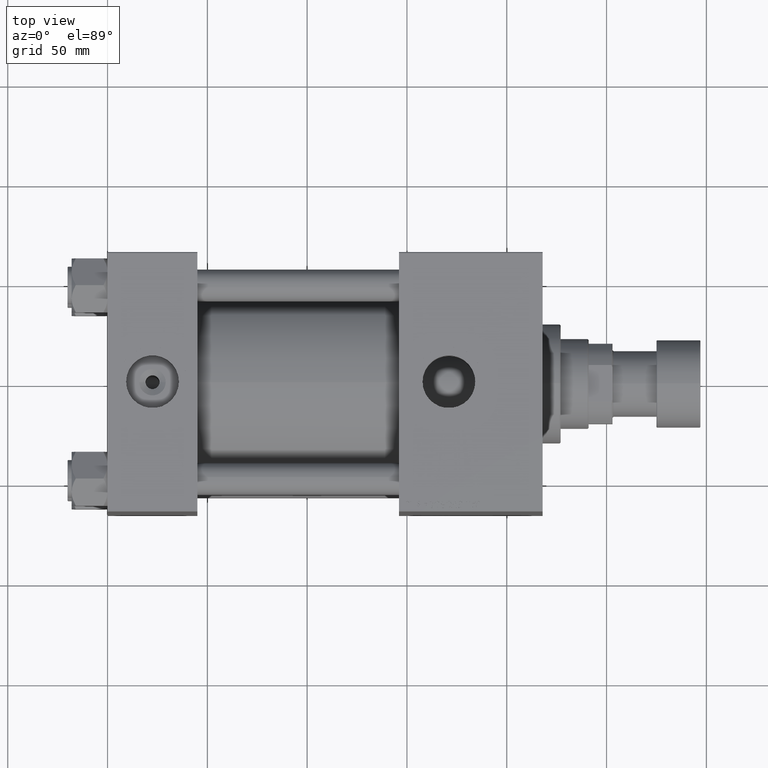
[diagram: clean part render]
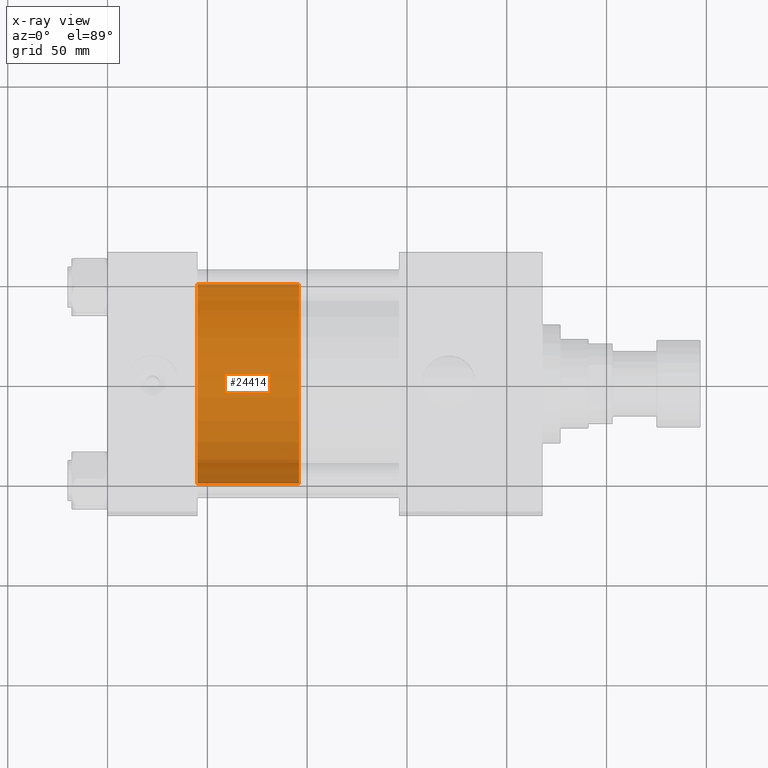
[diagram: x-ray — body ghosted, one internal face saturated and labeled with its STEP entity id]
A machine part, top view, then the same camera in x-ray: the body is ghosted and one INTERNAL B-rep face — a face not visible from any outside direction — is saturated and labeled: STEP entity #24414.
In plain terms, the highlighted cylindrical surface (partial cylindrical patch) has radius 50 mm, axis along (-1, 0, 0).
Its self-contained STEP definition (entity closure, byte-faithful):
#1917 = EDGE_CURVE ( 'NONE', #10053, #5168, #32548, .T. ) ;
#2818 = CIRCLE ( 'NONE', #4500, 50.00000000000000000 ) ;
#3732 = CARTESIAN_POINT ( 'NONE',  ( -50.00000000000000000, 0.000000000000000000, 51.00000000000000000 ) ) ;
#4369 = CARTESIAN_POINT ( 'NONE',  ( 0.000000000000000000, 0.000000000000000000, 51.00000000000000000 ) ) ;
#4500 = AXIS2_PLACEMENT_3D ( 'NONE', #11827, #32066, #27898 ) ;
#5168 = VERTEX_POINT ( 'NONE', #3732 ) ;
#5602 = CARTESIAN_POINT ( 'NONE',  ( 0.000000000000000000, 0.000000000000000000, 51.00000000000000000 ) ) ;
#5944 = CARTESIAN_POINT ( 'NONE',  ( -50.00000000000000000, 0.000000000000000000, 51.00000000000000000 ) ) ;
#7487 = VECTOR ( 'NONE', #13211, 1000.000000000000000 ) ;
#8580 = ORIENTED_EDGE ( 'NONE', *, *, #8609, .T. ) ;
#8609 = EDGE_CURVE ( 'NONE', #41716, #38941, #2818, .T. ) ;
#10053 = VERTEX_POINT ( 'NONE', #25230 ) ;
#11827 = CARTESIAN_POINT ( 'NONE',  ( 0.000000000000000000, 0.000000000000000000, 0.000000000000000000 ) ) ;
#12154 = CARTESIAN_POINT ( 'NONE',  ( 50.00000000000000000, 6.123233995736766085E-15, 51.00000000000000000 ) ) ;
#13211 = DIRECTION ( 'NONE',  ( -0.000000000000000000, -0.000000000000000000, -1.000000000000000000 ) ) ;
#16720 = ORIENTED_EDGE ( 'NONE', *, *, #1917, .F. ) ;
#20204 = DIRECTION ( 'NONE',  ( -0.000000000000000000, -0.000000000000000000, -1.000000000000000000 ) ) ;
#22268 = LINE ( 'NONE', #5944, #7487 ) ;
#23416 = AXIS2_PLACEMENT_3D ( 'NONE', #5602, #29695, #37243 ) ;
#24349 = LINE ( 'NONE', #12154, #32481 ) ;
#24414 = ADVANCED_FACE ( 'NONE', ( #51017 ), #26897, .T. ) ;
#25230 = CARTESIAN_POINT ( 'NONE',  ( 50.00000000000000000, 6.123233995736766085E-15, 51.00000000000000000 ) ) ;
#25263 = ORIENTED_EDGE ( 'NONE', *, *, #49368, .T. ) ;
#26897 = CYLINDRICAL_SURFACE ( 'NONE', #42985, 50.00000000000000000 ) ;
#27898 = DIRECTION ( 'NONE',  ( 1.000000000000000000, 0.000000000000000000, 0.000000000000000000 ) ) ;
#29695 = DIRECTION ( 'NONE',  ( 0.000000000000000000, 0.000000000000000000, 1.000000000000000000 ) ) ;
#31036 = EDGE_CURVE ( 'NONE', #5168, #38941, #22268, .T. ) ;
#31061 = DIRECTION ( 'NONE',  ( -0.000000000000000000, -0.000000000000000000, -1.000000000000000000 ) ) ;
#32066 = DIRECTION ( 'NONE',  ( 0.000000000000000000, 0.000000000000000000, 1.000000000000000000 ) ) ;
#32481 = VECTOR ( 'NONE', #20204, 1000.000000000000000 ) ;
#32548 = CIRCLE ( 'NONE', #23416, 50.00000000000000000 ) ;
#37243 = DIRECTION ( 'NONE',  ( 1.000000000000000000, 0.000000000000000000, 0.000000000000000000 ) ) ;
#38941 = VERTEX_POINT ( 'NONE', #50856 ) ;
#39631 = DIRECTION ( 'NONE',  ( -1.000000000000000000, 0.000000000000000000, 0.000000000000000000 ) ) ;
#41716 = VERTEX_POINT ( 'NONE', #42607 ) ;
#42607 = CARTESIAN_POINT ( 'NONE',  ( 50.00000000000000000, 6.123233995736766085E-15, 0.000000000000000000 ) ) ;
#42985 = AXIS2_PLACEMENT_3D ( 'NONE', #4369, #31061, #39631 ) ;
#46954 = ORIENTED_EDGE ( 'NONE', *, *, #31036, .F. ) ;
#49368 = EDGE_CURVE ( 'NONE', #10053, #41716, #24349, .T. ) ;
#50776 = EDGE_LOOP ( 'NONE', ( #16720, #25263, #8580, #46954 ) ) ;
#50856 = CARTESIAN_POINT ( 'NONE',  ( -50.00000000000000000, 0.000000000000000000, 0.000000000000000000 ) ) ;
#51017 = FACE_OUTER_BOUND ( 'NONE', #50776, .T. ) ;